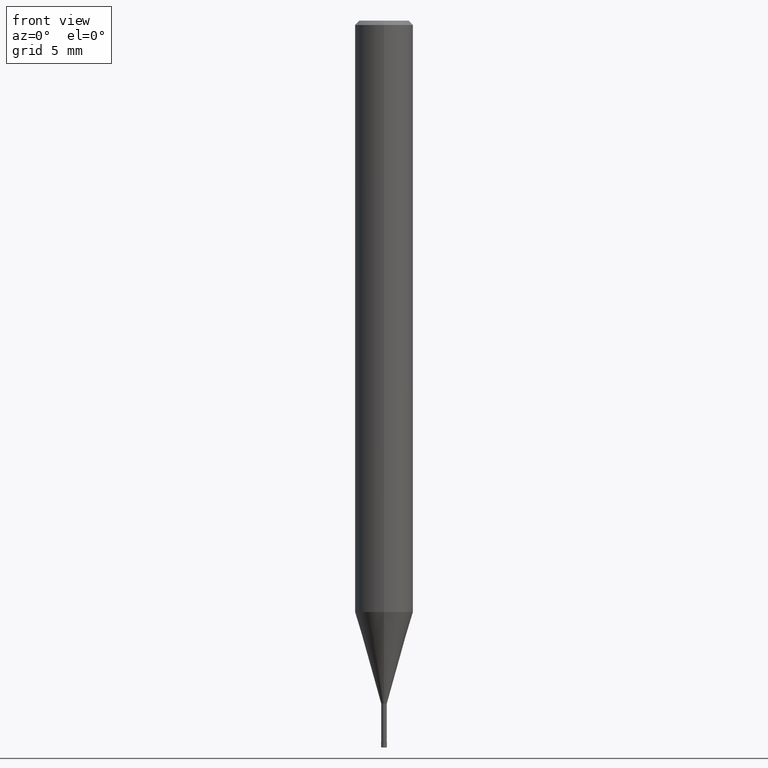
[diagram: clean part render]
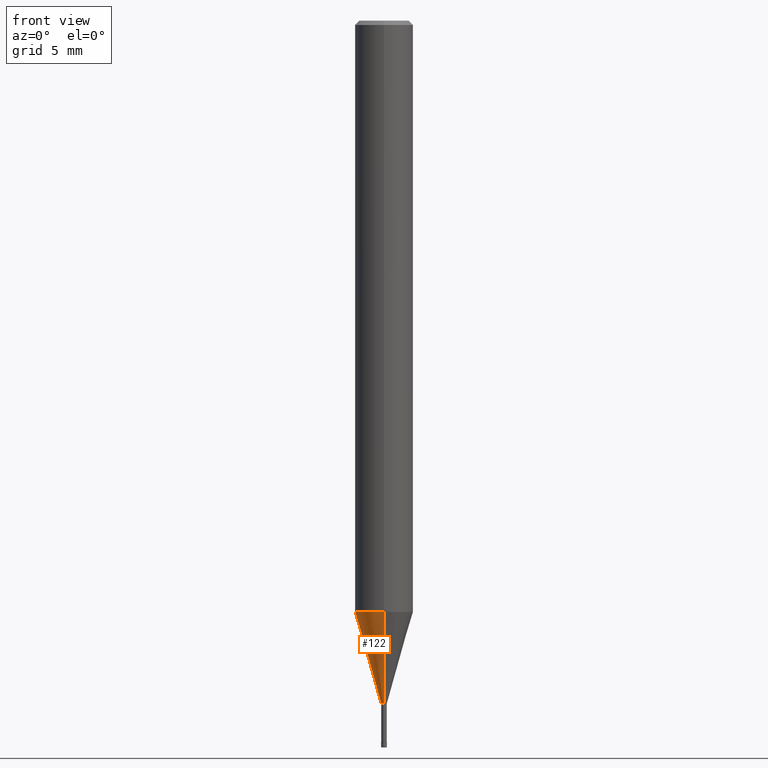
[diagram: same view with one face highlighted and labeled with its STEP entity id]
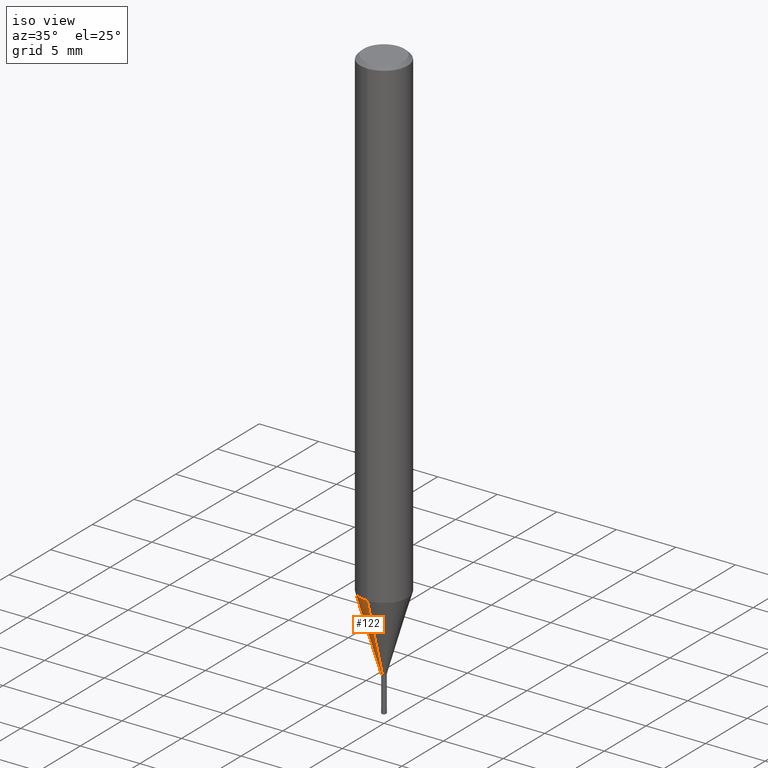
[diagram: same view with one face highlighted and labeled with its STEP entity id]
A machine part, front view. The second image highlights one B-rep face of the part: STEP entity #122.
A second angle (iso view) of the same face is appended — the face is thin or edge-on in the first view.
In plain terms, the highlighted conical surface has half-angle 16.001 deg.
Its self-contained STEP definition (entity closure, byte-faithful):
#112=VERTEX_POINT('',#269);
#122=ADVANCED_FACE('',(#282),#283,.T.);
#138=VERTEX_POINT('',#301);
#144=EDGE_CURVE('',#112,#138,#308,.T.);
#148=EDGE_CURVE('',#112,#208,#312,.T.);
#152=VERTEX_POINT('',#317);
#172=EDGE_CURVE('',#152,#208,#339,.T.);
#202=EDGE_CURVE('',#138,#152,#373,.T.);
#208=VERTEX_POINT('',#379);
#269=CARTESIAN_POINT('',(2.3261397690856E-017,-0.18995,-47.0));
#282=FACE_OUTER_BOUND('',#446,.T.);
#283=CONICAL_SURFACE('',#447,1.09495,0.279261921280279);
#301=CARTESIAN_POINT('',(2.44915147732706E-016,-1.99995,-40.688));
#308=LINE('',#478,#479);
#312=CIRCLE('',#485,0.18995);
#317=CARTESIAN_POINT('',(0.0,1.99995,-40.688));
#339=LINE('',#516,#517);
#373=CIRCLE('',#561,1.99995);
#379=CARTESIAN_POINT('',(0.0,0.18995,-47.0));
#446=EDGE_LOOP('',(#656,#657,#658,#659));
#447=AXIS2_PLACEMENT_3D('',#660,#661,#662);
#478=CARTESIAN_POINT('',(1.34088272711781E-016,-1.09495,-43.844));
#479=VECTOR('',#694,1.0);
#485=AXIS2_PLACEMENT_3D('',#698,#699,#700);
#516=CARTESIAN_POINT('',(-1.34088272711781E-016,1.09495,-43.844));
#517=VECTOR('',#732,1.0);
#561=AXIS2_PLACEMENT_3D('',#780,#781,#782);
#656=ORIENTED_EDGE('',*,*,#172,.T.);
#657=ORIENTED_EDGE('',*,*,#148,.F.);
#658=ORIENTED_EDGE('',*,*,#144,.T.);
#659=ORIENTED_EDGE('',*,*,#202,.T.);
#660=CARTESIAN_POINT('',(0.0,0.0,-43.844));
#661=DIRECTION('',(-0.0,-0.0,1.0));
#662=DIRECTION('',(0.0,1.0,0.0));
#694=DIRECTION('',(3.37558135426109E-017,-0.275646238787252,0.961259148743169));
#698=CARTESIAN_POINT('',(0.0,0.0,-47.0));
#699=DIRECTION('',(0.0,0.0,-1.0));
#700=DIRECTION('',(0.0,1.0,0.0));
#732=DIRECTION('',(3.37558135426109E-017,-0.275646238787252,-0.961259148743169));
#780=CARTESIAN_POINT('',(0.0,0.0,-40.688));
#781=DIRECTION('',(0.0,0.0,-1.0));
#782=DIRECTION('',(0.0,1.0,0.0));